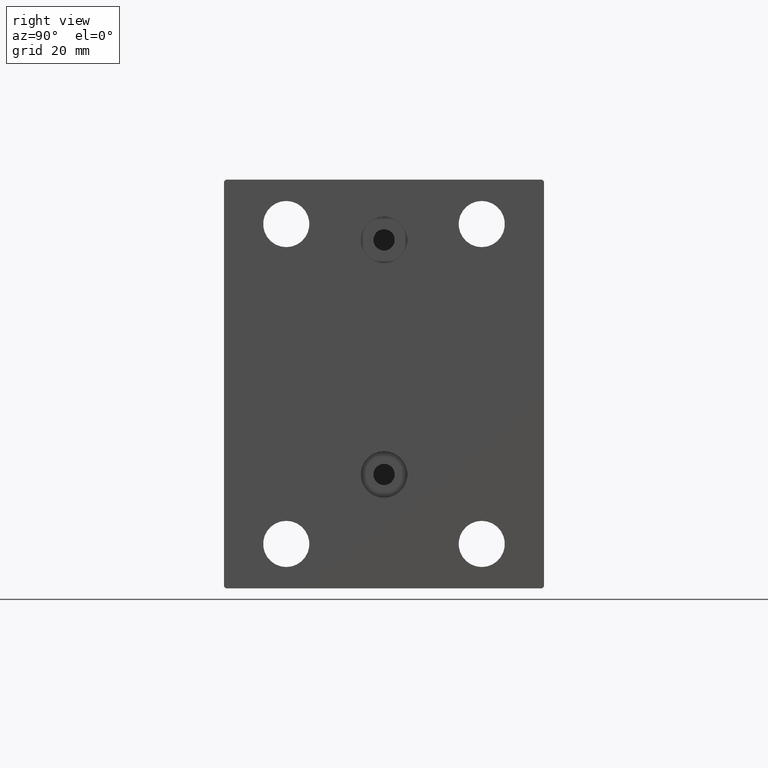
[diagram: clean part render]
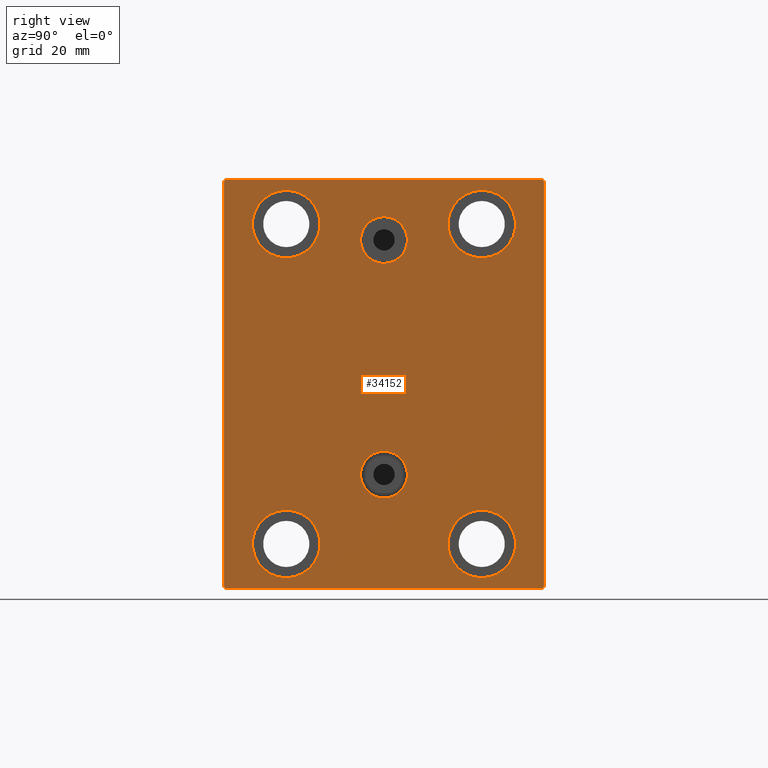
[diagram: same view with one face highlighted and labeled with its STEP entity id]
A machine part, right view. The second image highlights one B-rep face of the part: STEP entity #34152.
In plain terms, the highlighted planar face has unit normal (1, 0, 0).
Its self-contained STEP definition (entity closure, byte-faithful):
#445 = EDGE_CURVE ( 'NONE', #6967, #24116, #26397, .T. ) ;
#1331 = CARTESIAN_POINT ( 'NONE',  ( 88.00000000000000000, 27.49999999999998934, -44.99999999999998579 ) ) ;
#1341 = CARTESIAN_POINT ( 'NONE',  ( 88.00000000000000000, 27.49999999999998934, -44.99999999999998579 ) ) ;
#1663 = CARTESIAN_POINT ( 'NONE',  ( 88.00000000000000000, -27.50000000000000000, -35.49999999999998579 ) ) ;
#2086 = VERTEX_POINT ( 'NONE', #10912 ) ;
#2416 = CARTESIAN_POINT ( 'NONE',  ( 88.00000000000000000, 3.122849337825749828E-15, -25.49999999999999645 ) ) ;
#2450 = VERTEX_POINT ( 'NONE', #36068 ) ;
#2473 = CARTESIAN_POINT ( 'NONE',  ( 88.00000000000000000, 44.50000000000000000, -57.50000000000000711 ) ) ;
#2537 = VECTOR ( 'NONE', #35685, 1000.000000000000000 ) ;
#2891 = VERTEX_POINT ( 'NONE', #13022 ) ;
#2975 = CARTESIAN_POINT ( 'NONE',  ( 88.00000000000000000, -5.306417150674643778E-15, 33.92000000000000881 ) ) ;
#3452 = EDGE_LOOP ( 'NONE', ( #23029, #13381 ) ) ;
#3495 = LINE ( 'NONE', #25124, #2537 ) ;
#3508 = AXIS2_PLACEMENT_3D ( 'NONE', #24525, #27972, #16727 ) ;
#3896 = DIRECTION ( 'NONE',  ( 0.000000000000000000, 0.000000000000000000, 1.000000000000000000 ) ) ;
#3962 = CIRCLE ( 'NONE', #44355, 9.500000000000001776 ) ;
#4110 = DIRECTION ( 'NONE',  ( -1.000000000000000000, -0.000000000000000000, -0.000000000000000000 ) ) ;
#4154 = CARTESIAN_POINT ( 'NONE',  ( 88.00000000000000000, -27.49999999999998934, 54.50000000000000711 ) ) ;
#4212 = EDGE_LOOP ( 'NONE', ( #15689, #17297, #25773, #39003, #16399, #40476, #14349, #32488 ) ) ;
#4364 = CARTESIAN_POINT ( 'NONE',  ( 88.00000000000000000, -51.00000000000063238, 50.99999999999921840 ) ) ;
#4713 = AXIS2_PLACEMENT_3D ( 'NONE', #26984, #5149, #29529 ) ;
#4769 = EDGE_CURVE ( 'NONE', #33134, #2450, #11820, .T. ) ;
#4805 = DIRECTION ( 'NONE',  ( 1.000000000000000000, 0.000000000000000000, 0.000000000000000000 ) ) ;
#4985 = CARTESIAN_POINT ( 'NONE',  ( 88.00000000000000000, 27.50000000000001066, 54.50000000000000711 ) ) ;
#5149 = DIRECTION ( 'NONE',  ( -1.000000000000000000, -0.000000000000000000, -0.000000000000000000 ) ) ;
#5572 = VERTEX_POINT ( 'NONE', #4985 ) ;
#6899 = DIRECTION ( 'NONE',  ( 0.000000000000000000, 0.000000000000000000, -1.000000000000000000 ) ) ;
#6967 = VERTEX_POINT ( 'NONE', #2473 ) ;
#7320 = ORIENTED_EDGE ( 'NONE', *, *, #43508, .T. ) ;
#7390 = EDGE_LOOP ( 'NONE', ( #37579, #43288 ) ) ;
#7566 = CARTESIAN_POINT ( 'NONE',  ( 88.00000000000000000, 0.000000000000000000, 0.000000000000000000 ) ) ;
#7585 = AXIS2_PLACEMENT_3D ( 'NONE', #22319, #36333, #18878 ) ;
#7796 = CARTESIAN_POINT ( 'NONE',  ( 88.00000000000000000, 27.50000000000001066, 35.50000000000000711 ) ) ;
#7812 = DIRECTION ( 'NONE',  ( -0.000000000000000000, 0.7071067811865573427, -0.7071067811865378028 ) ) ;
#7971 = DIRECTION ( 'NONE',  ( -1.000000000000000000, -0.000000000000000000, -0.000000000000000000 ) ) ;
#8000 = ORIENTED_EDGE ( 'NONE', *, *, #25608, .F. ) ;
#8260 = FACE_BOUND ( 'NONE', #3452, .T. ) ;
#8373 = EDGE_CURVE ( 'NONE', #2891, #29850, #24222, .T. ) ;
#8670 = DIRECTION ( 'NONE',  ( 0.000000000000000000, -1.206764157201257045E-16, 1.000000000000000000 ) ) ;
#9134 = DIRECTION ( 'NONE',  ( -0.000000000000000000, 0.7071067811865378028, 0.7071067811865573427 ) ) ;
#9965 = CARTESIAN_POINT ( 'NONE',  ( 88.00000000000000000, -45.00000000000000000, 57.00000000000000711 ) ) ;
#9987 = VERTEX_POINT ( 'NONE', #32940 ) ;
#10128 = EDGE_LOOP ( 'NONE', ( #20282, #20259 ) ) ;
#10758 = LINE ( 'NONE', #32115, #30712 ) ;
#10912 = CARTESIAN_POINT ( 'NONE',  ( 88.00000000000000000, -27.49999999999998934, 35.50000000000000711 ) ) ;
#11079 = ORIENTED_EDGE ( 'NONE', *, *, #21035, .F. ) ;
#11229 = EDGE_CURVE ( 'NONE', #39429, #39115, #22318, .T. ) ;
#11719 = DIRECTION ( 'NONE',  ( 0.000000000000000000, 0.000000000000000000, 1.000000000000000000 ) ) ;
#11820 = CIRCLE ( 'NONE', #37495, 6.580000000000002736 ) ;
#11893 = DIRECTION ( 'NONE',  ( 0.000000000000000000, 0.000000000000000000, 1.000000000000000000 ) ) ;
#12342 = EDGE_CURVE ( 'NONE', #2450, #33134, #18535, .T. ) ;
#12418 = VECTOR ( 'NONE', #44515, 1000.000000000000000 ) ;
#12460 = DIRECTION ( 'NONE',  ( 0.000000000000000000, 0.000000000000000000, 1.000000000000000000 ) ) ;
#12916 = DIRECTION ( 'NONE',  ( 0.000000000000000000, 0.000000000000000000, -1.000000000000000000 ) ) ;
#13022 = CARTESIAN_POINT ( 'NONE',  ( 88.00000000000000000, -45.00000000000000000, -57.00000000000002132 ) ) ;
#13381 = ORIENTED_EDGE ( 'NONE', *, *, #40689, .T. ) ;
#14036 = CARTESIAN_POINT ( 'NONE',  ( 88.00000000000000000, -27.49999999999998934, 45.00000000000000711 ) ) ;
#14349 = ORIENTED_EDGE ( 'NONE', *, *, #39586, .T. ) ;
#14479 = FACE_BOUND ( 'NONE', #29112, .T. ) ;
#14503 = AXIS2_PLACEMENT_3D ( 'NONE', #7566, #4805, #18850 ) ;
#15064 = EDGE_CURVE ( 'NONE', #2086, #38285, #40629, .T. ) ;
#15066 = AXIS2_PLACEMENT_3D ( 'NONE', #1331, #29638, #18834 ) ;
#15135 = CARTESIAN_POINT ( 'NONE',  ( 88.00000000000000000, -44.50000000000000000, -57.50000000000000711 ) ) ;
#15689 = ORIENTED_EDGE ( 'NONE', *, *, #41051, .T. ) ;
#16130 = VERTEX_POINT ( 'NONE', #28883 ) ;
#16213 = VECTOR ( 'NONE', #7812, 1000.000000000000000 ) ;
#16399 = ORIENTED_EDGE ( 'NONE', *, *, #26148, .T. ) ;
#16469 = DIRECTION ( 'NONE',  ( 1.000000000000000000, 0.000000000000000000, -0.000000000000000000 ) ) ;
#16727 = DIRECTION ( 'NONE',  ( 0.000000000000000000, 0.000000000000000000, 1.000000000000000000 ) ) ;
#16763 = CIRCLE ( 'NONE', #3508, 9.500000000000001776 ) ;
#16824 = CIRCLE ( 'NONE', #24907, 9.500000000000001776 ) ;
#17004 = CARTESIAN_POINT ( 'NONE',  ( 88.00000000000000000, 45.00000000000001421, -57.00000000000000711 ) ) ;
#17147 = CARTESIAN_POINT ( 'NONE',  ( 88.00000000000000000, -45.00000000000000000, 57.49999999999999289 ) ) ;
#17234 = CARTESIAN_POINT ( 'NONE',  ( 88.00000000000000000, 3.122849337825749828E-15, -32.07999999999999829 ) ) ;
#17297 = ORIENTED_EDGE ( 'NONE', *, *, #36232, .T. ) ;
#17424 = DIRECTION ( 'NONE',  ( 0.000000000000000000, -1.000000000000000000, -1.541976423090495387E-16 ) ) ;
#17445 = VECTOR ( 'NONE', #8670, 1000.000000000000000 ) ;
#17724 = EDGE_LOOP ( 'NONE', ( #7320, #37681 ) ) ;
#17941 = CARTESIAN_POINT ( 'NONE',  ( 88.00000000000000000, -5.306417150674643778E-15, 40.50000000000000711 ) ) ;
#18008 = EDGE_CURVE ( 'NONE', #40917, #5572, #3962, .T. ) ;
#18535 = CIRCLE ( 'NONE', #41278, 6.580000000000002736 ) ;
#18691 = AXIS2_PLACEMENT_3D ( 'NONE', #26712, #40488, #12916 ) ;
#18749 = CIRCLE ( 'NONE', #15066, 9.500000000000001776 ) ;
#18834 = DIRECTION ( 'NONE',  ( 0.000000000000000000, 0.000000000000000000, 1.000000000000000000 ) ) ;
#18850 = DIRECTION ( 'NONE',  ( 0.000000000000000000, 0.000000000000000000, -1.000000000000000000 ) ) ;
#18878 = DIRECTION ( 'NONE',  ( 0.000000000000000000, 0.000000000000000000, 1.000000000000000000 ) ) ;
#19133 = DIRECTION ( 'NONE',  ( -1.000000000000000000, -0.000000000000000000, -0.000000000000000000 ) ) ;
#19858 = ORIENTED_EDGE ( 'NONE', *, *, #44089, .T. ) ;
#20259 = ORIENTED_EDGE ( 'NONE', *, *, #12342, .F. ) ;
#20282 = ORIENTED_EDGE ( 'NONE', *, *, #4769, .F. ) ;
#20945 = DIRECTION ( 'NONE',  ( 0.000000000000000000, -0.7071067811865376918, -0.7071067811865573427 ) ) ;
#21035 = EDGE_CURVE ( 'NONE', #40464, #40790, #35644, .T. ) ;
#22149 = VECTOR ( 'NONE', #39768, 1000.000000000000114 ) ;
#22295 = FACE_BOUND ( 'NONE', #10128, .T. ) ;
#22318 = LINE ( 'NONE', #29903, #22149 ) ;
#22319 = CARTESIAN_POINT ( 'NONE',  ( 88.00000000000000000, -27.49999999999998934, 45.00000000000000711 ) ) ;
#23029 = ORIENTED_EDGE ( 'NONE', *, *, #18008, .T. ) ;
#23824 = LINE ( 'NONE', #17147, #12418 ) ;
#24116 = VERTEX_POINT ( 'NONE', #17004 ) ;
#24222 = LINE ( 'NONE', #39306, #16213 ) ;
#24461 = EDGE_CURVE ( 'NONE', #35999, #16130, #24546, .T. ) ;
#24525 = CARTESIAN_POINT ( 'NONE',  ( 88.00000000000000000, 27.50000000000001066, 45.00000000000000711 ) ) ;
#24546 = CIRCLE ( 'NONE', #4713, 9.500000000000001776 ) ;
#24907 = AXIS2_PLACEMENT_3D ( 'NONE', #1341, #4110, #11719 ) ;
#25124 = CARTESIAN_POINT ( 'NONE',  ( 88.00000000000000000, -45.00000000000000000, -57.50000000000000711 ) ) ;
#25395 = CARTESIAN_POINT ( 'NONE',  ( 88.00000000000000000, 44.50000000000001421, 57.50000000000000711 ) ) ;
#25608 = EDGE_CURVE ( 'NONE', #40790, #40464, #27468, .T. ) ;
#25773 = ORIENTED_EDGE ( 'NONE', *, *, #42134, .T. ) ;
#25965 = CARTESIAN_POINT ( 'NONE',  ( 88.00000000000000000, 45.00000000000000000, 57.00000000000000711 ) ) ;
#26014 = CARTESIAN_POINT ( 'NONE',  ( 88.00000000000000000, -44.50000000000000000, 57.49999999999999289 ) ) ;
#26148 = EDGE_CURVE ( 'NONE', #29850, #6967, #3495, .T. ) ;
#26397 = LINE ( 'NONE', #36951, #40354 ) ;
#26712 = CARTESIAN_POINT ( 'NONE',  ( 88.00000000000000000, -5.306417150674643778E-15, 40.50000000000000711 ) ) ;
#26984 = CARTESIAN_POINT ( 'NONE',  ( 88.00000000000000000, -27.50000000000000000, -44.99999999999998579 ) ) ;
#27468 = CIRCLE ( 'NONE', #18691, 6.580000000000002736 ) ;
#27972 = DIRECTION ( 'NONE',  ( -1.000000000000000000, -0.000000000000000000, -0.000000000000000000 ) ) ;
#28112 = EDGE_CURVE ( 'NONE', #9987, #45319, #18749, .T. ) ;
#28755 = LINE ( 'NONE', #4364, #40120 ) ;
#28883 = CARTESIAN_POINT ( 'NONE',  ( 88.00000000000000000, -27.50000000000000000, -54.49999999999998579 ) ) ;
#29064 = AXIS2_PLACEMENT_3D ( 'NONE', #17941, #38619, #6899 ) ;
#29112 = EDGE_LOOP ( 'NONE', ( #11079, #8000 ) ) ;
#29529 = DIRECTION ( 'NONE',  ( 0.000000000000000000, 0.000000000000000000, 1.000000000000000000 ) ) ;
#29638 = DIRECTION ( 'NONE',  ( -1.000000000000000000, -0.000000000000000000, -0.000000000000000000 ) ) ;
#29727 = EDGE_CURVE ( 'NONE', #16130, #35999, #31985, .T. ) ;
#29850 = VERTEX_POINT ( 'NONE', #15135 ) ;
#29903 = CARTESIAN_POINT ( 'NONE',  ( 88.00000000000000000, 50.99999999999940314, 51.00000000000082423 ) ) ;
#29940 = CARTESIAN_POINT ( 'NONE',  ( 88.00000000000000000, -4.500599556835684736E-15, 47.08000000000001251 ) ) ;
#30712 = VECTOR ( 'NONE', #17424, 1000.000000000000000 ) ;
#31985 = CIRCLE ( 'NONE', #37849, 9.500000000000001776 ) ;
#32037 = EDGE_LOOP ( 'NONE', ( #32158, #19858 ) ) ;
#32115 = CARTESIAN_POINT ( 'NONE',  ( 88.00000000000000000, 45.00000000000000000, 57.50000000000000711 ) ) ;
#32158 = ORIENTED_EDGE ( 'NONE', *, *, #15064, .T. ) ;
#32488 = ORIENTED_EDGE ( 'NONE', *, *, #11229, .T. ) ;
#32940 = CARTESIAN_POINT ( 'NONE',  ( 88.00000000000000000, 27.49999999999998934, -35.49999999999998579 ) ) ;
#33134 = VERTEX_POINT ( 'NONE', #17234 ) ;
#34152 = ADVANCED_FACE ( 'NONE', ( #14479, #22295, #39065, #39740, #8260, #42738, #35843 ), #36306, .T. ) ;
#34436 = CIRCLE ( 'NONE', #40324, 9.500000000000001776 ) ;
#34884 = VERTEX_POINT ( 'NONE', #9965 ) ;
#35115 = DIRECTION ( 'NONE',  ( 0.000000000000000000, 0.000000000000000000, 1.000000000000000000 ) ) ;
#35644 = CIRCLE ( 'NONE', #29064, 6.580000000000002736 ) ;
#35685 = DIRECTION ( 'NONE',  ( 0.000000000000000000, 1.000000000000000000, 0.000000000000000000 ) ) ;
#35843 = FACE_OUTER_BOUND ( 'NONE', #4212, .T. ) ;
#35999 = VERTEX_POINT ( 'NONE', #1663 ) ;
#36068 = CARTESIAN_POINT ( 'NONE',  ( 88.00000000000000000, 3.928666931664708475E-15, -18.91999999999999105 ) ) ;
#36232 = EDGE_CURVE ( 'NONE', #38317, #34884, #28755, .T. ) ;
#36306 = PLANE ( 'NONE',  #14503 ) ;
#36333 = DIRECTION ( 'NONE',  ( -1.000000000000000000, -0.000000000000000000, -0.000000000000000000 ) ) ;
#36450 = DIRECTION ( 'NONE',  ( 1.000000000000000000, 0.000000000000000000, -0.000000000000000000 ) ) ;
#36951 = CARTESIAN_POINT ( 'NONE',  ( 88.00000000000000000, 51.00000000000063949, -50.99999999999923261 ) ) ;
#37495 = AXIS2_PLACEMENT_3D ( 'NONE', #2416, #16469, #11893 ) ;
#37579 = ORIENTED_EDGE ( 'NONE', *, *, #29727, .T. ) ;
#37681 = ORIENTED_EDGE ( 'NONE', *, *, #28112, .T. ) ;
#37849 = AXIS2_PLACEMENT_3D ( 'NONE', #42688, #7971, #35115 ) ;
#38285 = VERTEX_POINT ( 'NONE', #4154 ) ;
#38317 = VERTEX_POINT ( 'NONE', #26014 ) ;
#38614 = DIRECTION ( 'NONE',  ( -1.000000000000000000, -0.000000000000000000, -0.000000000000000000 ) ) ;
#38619 = DIRECTION ( 'NONE',  ( 1.000000000000000000, 0.000000000000000000, 0.000000000000000000 ) ) ;
#39003 = ORIENTED_EDGE ( 'NONE', *, *, #8373, .T. ) ;
#39065 = FACE_BOUND ( 'NONE', #17724, .T. ) ;
#39115 = VERTEX_POINT ( 'NONE', #25395 ) ;
#39306 = CARTESIAN_POINT ( 'NONE',  ( 88.00000000000000000, -50.99999999999939604, -51.00000000000080291 ) ) ;
#39429 = VERTEX_POINT ( 'NONE', #25965 ) ;
#39586 = EDGE_CURVE ( 'NONE', #24116, #39429, #40368, .T. ) ;
#39740 = FACE_BOUND ( 'NONE', #32037, .T. ) ;
#39768 = DIRECTION ( 'NONE',  ( -0.000000000000000000, -0.7071067811865573427, 0.7071067811865376918 ) ) ;
#39883 = CARTESIAN_POINT ( 'NONE',  ( 88.00000000000000000, 3.122849337825749828E-15, -25.49999999999999645 ) ) ;
#40120 = VECTOR ( 'NONE', #20945, 1000.000000000000114 ) ;
#40141 = CARTESIAN_POINT ( 'NONE',  ( 88.00000000000000000, 45.00000000000001421, -57.50000000000000711 ) ) ;
#40324 = AXIS2_PLACEMENT_3D ( 'NONE', #14036, #38614, #3896 ) ;
#40354 = VECTOR ( 'NONE', #9134, 1000.000000000000000 ) ;
#40368 = LINE ( 'NONE', #40141, #17445 ) ;
#40464 = VERTEX_POINT ( 'NONE', #2975 ) ;
#40476 = ORIENTED_EDGE ( 'NONE', *, *, #445, .T. ) ;
#40488 = DIRECTION ( 'NONE',  ( 1.000000000000000000, 0.000000000000000000, 0.000000000000000000 ) ) ;
#40629 = CIRCLE ( 'NONE', #7585, 9.500000000000001776 ) ;
#40689 = EDGE_CURVE ( 'NONE', #5572, #40917, #16763, .T. ) ;
#40790 = VERTEX_POINT ( 'NONE', #29940 ) ;
#40917 = VERTEX_POINT ( 'NONE', #7796 ) ;
#41051 = EDGE_CURVE ( 'NONE', #39115, #38317, #10758, .T. ) ;
#41278 = AXIS2_PLACEMENT_3D ( 'NONE', #39883, #36450, #44035 ) ;
#41328 = CARTESIAN_POINT ( 'NONE',  ( 88.00000000000000000, 27.49999999999998934, -54.49999999999998579 ) ) ;
#42134 = EDGE_CURVE ( 'NONE', #34884, #2891, #23824, .T. ) ;
#42688 = CARTESIAN_POINT ( 'NONE',  ( 88.00000000000000000, -27.50000000000000000, -44.99999999999998579 ) ) ;
#42738 = FACE_BOUND ( 'NONE', #7390, .T. ) ;
#43014 = CARTESIAN_POINT ( 'NONE',  ( 88.00000000000000000, 27.50000000000001066, 45.00000000000000711 ) ) ;
#43288 = ORIENTED_EDGE ( 'NONE', *, *, #24461, .T. ) ;
#43508 = EDGE_CURVE ( 'NONE', #45319, #9987, #16824, .T. ) ;
#44035 = DIRECTION ( 'NONE',  ( 0.000000000000000000, 0.000000000000000000, 1.000000000000000000 ) ) ;
#44089 = EDGE_CURVE ( 'NONE', #38285, #2086, #34436, .T. ) ;
#44355 = AXIS2_PLACEMENT_3D ( 'NONE', #43014, #19133, #12460 ) ;
#44515 = DIRECTION ( 'NONE',  ( 0.000000000000000000, 0.000000000000000000, -1.000000000000000000 ) ) ;
#45319 = VERTEX_POINT ( 'NONE', #41328 ) ;